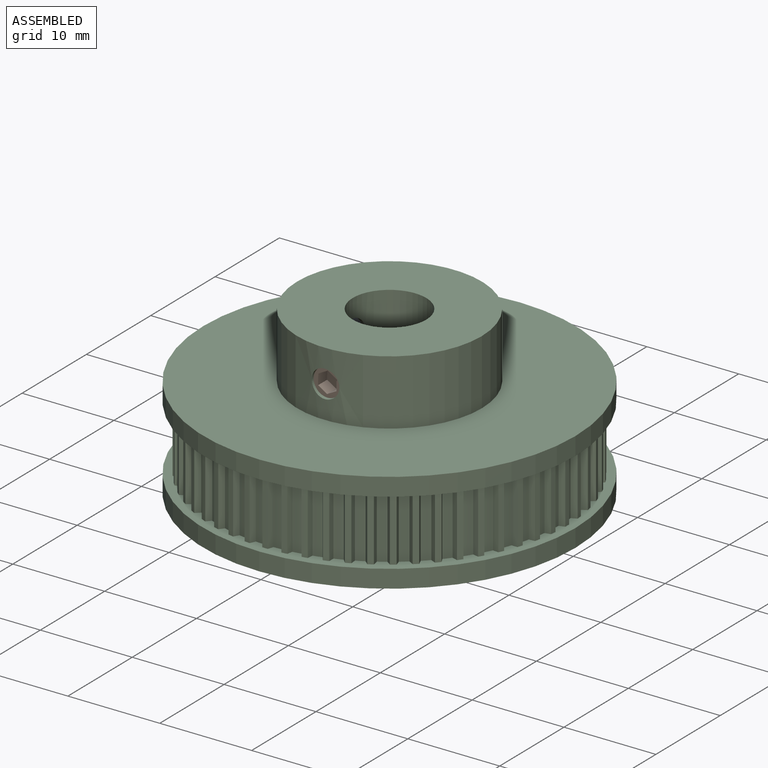
[diagram: assembled view]
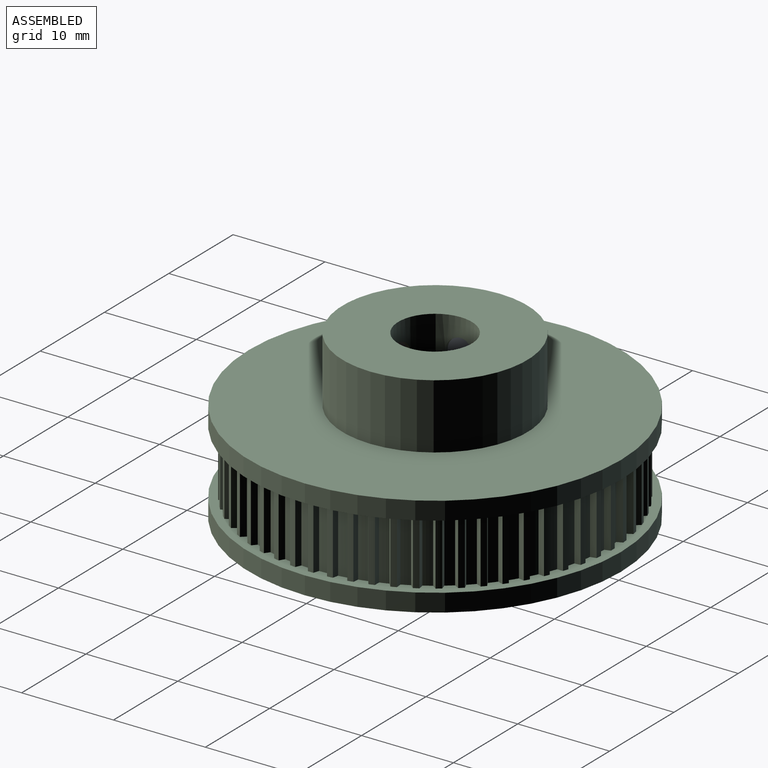
[diagram: assembled view, second angle]
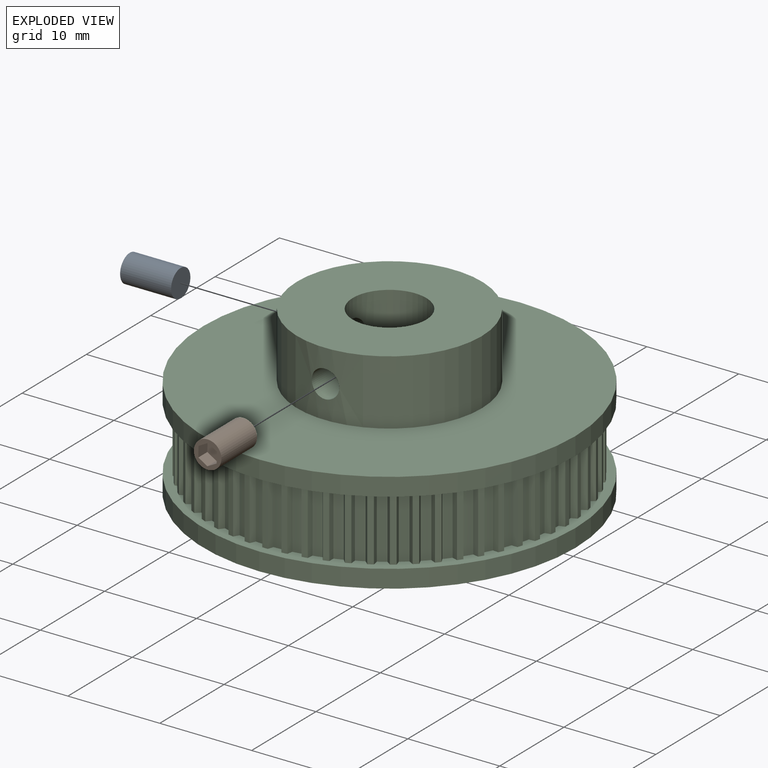
[diagram: exploded view]
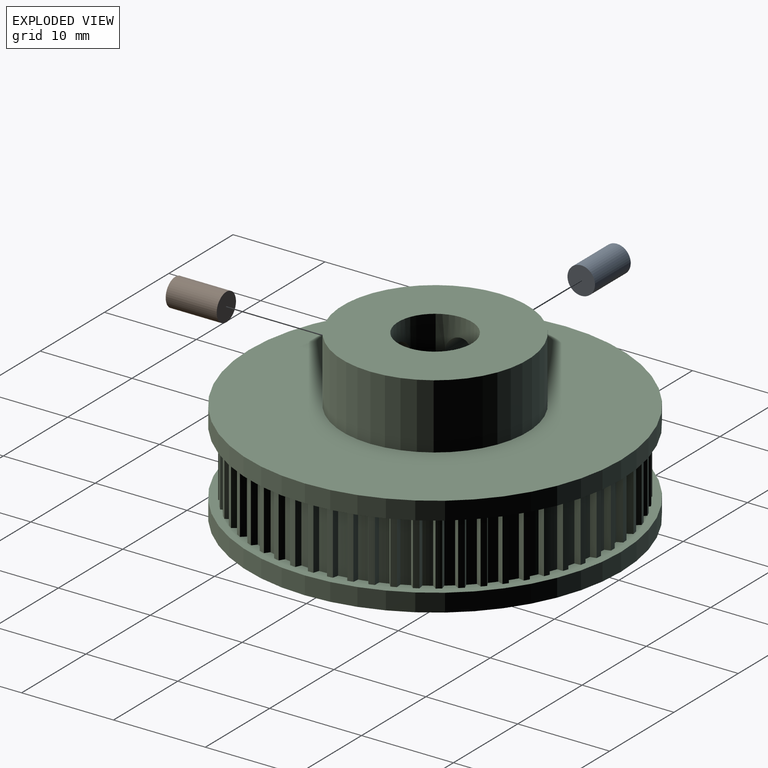
[diagram: exploded view, second angle]
ASSEMBLY  parts=3 mates=2
PART A: 10 faces, bbox 5.6x3x3 mm
  f0: cylinder r=1.5mm len=5.55mm, axis (-1,0,0), area 52.3mm2, adj f1,f2
  f1: plane 3x3mm, normal (1,0,0), area 7.1mm2, adj f0
  f2: plane 3x3mm, normal (-1,0,0), area 3.6mm2, adj f0,f3,f4,f5,f6,f7,f8
  f3: plane 1.4x0.98mm, normal (0,-0.52,0.85), area 1.6mm2, adj f2,f4,f8,f9
  f4: plane 1.4x1.02mm, normal (0,0.48,0.88), area 1.6mm2, adj f2,f3,f5,f9
  f5: plane 1.4x1.15mm, normal (0,1,0.03), area 1.6mm2, adj f2,f4,f6,f9
  f6: plane 1.4x0.98mm, normal (0,0.52,-0.85), area 1.6mm2, adj f2,f5,f7,f9
  f7: plane 1.4x1.02mm, normal (0,-0.48,-0.88), area 1.6mm2, adj f2,f6,f8,f9
  f8: plane 1.4x1.15mm, normal (0,-1,-0.03), area 1.6mm2, adj f2,f3,f7,f9
  f9: plane 2.31x2.03mm, normal (-1,0,0), area 3.5mm2, adj f3,f4,f5,f6,f7,f8
PART B: 10 faces, bbox 3x5.6x3 mm
  f0: cylinder r=1.5mm len=5.55mm, axis (0,1,0), area 52.3mm2, adj f1,f2
  f1: plane 3x3mm, normal (0,-1,0), area 7.1mm2, adj f0
  f2: plane 3x3mm, normal (0,1,0), area 3.6mm2, adj f0,f3,f4,f5,f6,f7,f8
  f3: plane 1.4x0.98mm, normal (-0.52,0,0.85), area 1.6mm2, adj f2,f4,f8,f9
  f4: plane 1.4x1.02mm, normal (0.48,0,0.88), area 1.6mm2, adj f2,f3,f5,f9
  f5: plane 1.4x1.15mm, normal (1,0,0.03), area 1.6mm2, adj f2,f4,f6,f9
  f6: plane 1.4x0.98mm, normal (0.52,0,-0.85), area 1.6mm2, adj f2,f5,f7,f9
  f7: plane 1.4x1.02mm, normal (-0.48,0,-0.88), area 1.6mm2, adj f2,f6,f8,f9
  f8: plane 1.4x1.15mm, normal (-1,0,-0.03), area 1.6mm2, adj f2,f3,f7,f9
  f9: plane 2.31x2.03mm, normal (0,1,0), area 3.5mm2, adj f3,f4,f5,f6,f7,f8
PART C: 251 faces, bbox 40.5x40.5x18.1 mm
  f0: cylinder r=4mm len=18.1mm, axis (0,0,-1), area 440.5mm2, adj f239,f245,f249,f250
  f1: cylinder r=10.05mm len=20.1mm, axis (0,0,-1), area 434.2mm2, adj f244,f245,f249,f250
  f2: cylinder r=18.75mm len=7.1mm, axis (0,0,-1), area 6.8mm2, adj f3,f238,f242,f248
  f3: plane 7.1x0.58mm, normal (0.91,0.41,0), area 4.5mm2, adj f2,f4,f238,f242
  f4: cylinder r=19.35mm len=7.1mm, axis (0,0,-1), area 4.3mm2, adj f3,f5,f238,f242
  f5: plane 7.1x0.62mm, normal (-0.98,0.21,0), area 4.5mm2, adj f4,f6,f238,f242
  f6: cylinder r=18.75mm len=7.1mm, axis (0,0,-1), area 6.8mm2, adj f5,f7,f238,f242
  f7: plane 7.1x0.55mm, normal (0.86,0.5,0), area 4.5mm2, adj f6,f8,f238,f242
  f8: cylinder r=19.35mm len=7.1mm, axis (0,0,-1), area 4.3mm2, adj f7,f9,f238,f242
  f9: plane 7.1x0.63mm, normal (-0.99,0.11,0), area 4.5mm2, adj f8,f10,f238,f242
  f10: cylinder r=18.75mm len=7.1mm, axis (0,0,-1), area 6.8mm2, adj f9,f11,f238,f242
  f11: plane 7.1x0.51mm, normal (0.81,0.59,0), area 4.5mm2, adj f10,f12,f238,f242
  f12: cylinder r=19.35mm len=7.1mm, axis (0,0,-1), area 4.3mm2, adj f11,f13,f238,f242
  f13: plane 7.1x0.64mm, normal (-1,0.01,0), area 4.5mm2, adj f12,f14,f238,f242
  f14: cylinder r=18.75mm len=7.1mm, axis (0,0,-1), area 6.8mm2, adj f13,f15,f238,f242
  f15: plane 7.1x0.47mm, normal (0.74,0.67,0), area 4.5mm2, adj f14,f16,f238,f242
  f16: cylinder r=19.35mm len=7.1mm, axis (0,0,-1), area 4.3mm2, adj f15,f17,f238,f242
  f17: plane 7.1x0.63mm, normal (-1,-0.1,0), area 4.5mm2, adj f16,f18,f238,f242
  f18: cylinder r=18.75mm len=7.1mm, axis (0,0,-1), area 6.8mm2, adj f17,f19,f238,f242
  f19: plane 7.1x0.48mm, normal (0.67,0.75,0), area 4.5mm2, adj f18,f20,f238,f242
  f20: cylinder r=19.35mm len=7.1mm, axis (0,0,-1), area 4.3mm2, adj f19,f21,f238,f242
  f21: plane 7.1x0.62mm, normal (-0.98,-0.2,0), area 4.5mm2, adj f20,f22,f238,f242
  f22: cylinder r=18.75mm len=7.1mm, axis (0,0,-1), area 6.8mm2, adj f21,f23,f238,f242
  f23: plane 7.1x0.52mm, normal (0.58,0.81,0), area 4.5mm2, adj f22,f24,f238,f242
  f24: cylinder r=19.35mm len=7.1mm, axis (0,0,-1), area 4.3mm2, adj f23,f25,f238,f242
  f25: plane 7.1x0.61mm, normal (-0.95,-0.3,0), area 4.5mm2, adj f24,f26,f238,f242
  f26: cylinder r=18.75mm len=7.1mm, axis (0,0,-1), area 6.8mm2, adj f25,f27,f238,f242
  f27: plane 7.1x0.55mm, normal (0.5,0.87,0), area 4.5mm2, adj f26,f28,f238,f242
  f28: cylinder r=19.35mm len=7.1mm, axis (0,0,-1), area 4.3mm2, adj f27,f29,f238,f242
  f29: plane 7.1x0.58mm, normal (-0.92,-0.4,0), area 4.5mm2, adj f28,f30,f238,f242
  f30: cylinder r=18.75mm len=7.1mm, axis (0,0,-1), area 6.8mm2, adj f29,f31,f238,f242
  f31: plane 7.1x0.58mm, normal (0.4,0.92,0), area 4.5mm2, adj f30,f32,f238,f242
  f32: cylinder r=19.35mm len=7.1mm, axis (0,0,-1), area 4.3mm2, adj f31,f33,f238,f242
  f33: plane 7.1x0.55mm, normal (-0.87,-0.5,0), area 4.5mm2, adj f32,f34,f238,f242
  f34: cylinder r=18.75mm len=7.1mm, axis (0,0,-1), area 6.8mm2, adj f33,f35,f238,f242
  f35: plane 7.1x0.61mm, normal (0.3,0.95,0), area 4.5mm2, adj f34,f36,f238,f242
  f36: cylinder r=19.35mm len=7.1mm, axis (0,0,-1), area 4.3mm2, adj f35,f37,f238,f242
  f37: plane 7.1x0.52mm, normal (-0.81,-0.58,0), area 4.5mm2, adj f36,f38,f238,f242
  f38: cylinder r=18.75mm len=7.1mm, axis (0,0,-1), area 6.8mm2, adj f37,f39,f238,f242
  f39: plane 7.1x0.62mm, normal (0.2,0.98,0), area 4.5mm2, adj f38,f40,f238,f242
  f40: cylinder r=19.35mm len=7.1mm, axis (0,0,-1), area 4.3mm2, adj f39,f41,f238,f242
  f41: plane 7.1x0.48mm, normal (-0.75,-0.67,0), area 4.5mm2, adj f40,f42,f238,f242
  f42: cylinder r=18.75mm len=7.1mm, axis (0,0,-1), area 6.8mm2, adj f41,f43,f238,f242
  f43: plane 7.1x0.63mm, normal (0.1,1,0), area 4.5mm2, adj f42,f44,f238,f242
  f44: cylinder r=19.35mm len=7.1mm, axis (0,0,-1), area 4.3mm2, adj f43,f45,f238,f242
  f45: plane 7.1x0.47mm, normal (-0.67,-0.74,0), area 4.5mm2, adj f44,f46,f238,f242
  f46: cylinder r=18.75mm len=7.1mm, axis (0,0,-1), area 6.8mm2, adj f45,f47,f238,f242
  f47: plane 7.1x0.64mm, normal (-0.01,1,0), area 4.5mm2, adj f46,f48,f238,f242
  f48: cylinder r=19.35mm len=7.1mm, axis (0,0,-1), area 4.3mm2, adj f47,f49,f238,f242
  f49: plane 7.1x0.51mm, normal (-0.59,-0.81,0), area 4.5mm2, adj f48,f50,f238,f242
  f50: cylinder r=18.75mm len=7.1mm, axis (0,0,-1), area 6.8mm2, adj f49,f51,f238,f242
  f51: plane 7.1x0.63mm, normal (-0.11,0.99,0), area 4.5mm2, adj f50,f52,f238,f242
  f52: cylinder r=19.35mm len=7.1mm, axis (0,0,-1), area 4.3mm2, adj f51,f53,f238,f242
  f53: plane 7.1x0.55mm, normal (-0.5,-0.86,0), area 4.5mm2, adj f52,f54,f238,f242
  f54: cylinder r=18.75mm len=7.1mm, axis (0,0,-1), area 6.8mm2, adj f53,f55,f238,f242
  f55: plane 7.1x0.62mm, normal (-0.21,0.98,0), area 4.5mm2, adj f54,f56,f238,f242
  f56: cylinder r=19.35mm len=7.1mm, axis (0,0,-1), area 4.3mm2, adj f55,f57,f238,f242
  f57: plane 7.1x0.58mm, normal (-0.41,-0.91,0), area 4.5mm2, adj f56,f58,f238,f242
  f58: cylinder r=18.75mm len=7.1mm, axis (0,0,-1), area 6.8mm2, adj f57,f59,f238,f242
  f59: plane 7.1x0.6mm, normal (-0.31,0.95,0), area 4.5mm2, adj f58,f60,f238,f242
  f60: cylinder r=19.35mm len=7.1mm, axis (0,0,-1), area 4.3mm2, adj f59,f61,f238,f242
  f61: plane 7.1x0.6mm, normal (-0.31,-0.95,0), area 4.5mm2, adj f60,f62,f238,f242
  f62: cylinder r=18.75mm len=7.1mm, axis (0,0,-1), area 6.8mm2, adj f61,f63,f238,f242
  f63: plane 7.1x0.58mm, normal (-0.41,0.91,0), area 4.5mm2, adj f62,f64,f238,f242
  f64: cylinder r=19.35mm len=7.1mm, axis (0,0,-1), area 4.3mm2, adj f63,f65,f238,f242
  f65: plane 7.1x0.62mm, normal (-0.21,-0.98,0), area 4.5mm2, adj f64,f66,f238,f242
  f66: cylinder r=18.75mm len=7.1mm, axis (0,0,-1), area 6.8mm2, adj f65,f67,f238,f242
  f67: plane 7.1x0.55mm, normal (-0.5,0.86,0), area 4.5mm2, adj f66,f68,f238,f242
  f68: cylinder r=19.35mm len=7.1mm, axis (0,0,-1), area 4.3mm2, adj f67,f69,f238,f242
  f69: plane 7.1x0.63mm, normal (-0.11,-0.99,0), area 4.5mm2, adj f68,f70,f238,f242
  f70: cylinder r=18.75mm len=7.1mm, axis (0,0,-1), area 6.8mm2, adj f69,f71,f238,f242
  f71: plane 7.1x0.51mm, normal (-0.59,0.81,0), area 4.5mm2, adj f70,f72,f238,f242
  f72: cylinder r=19.35mm len=7.1mm, axis (0,0,-1), area 4.3mm2, adj f71,f73,f238,f242
  f73: plane 7.1x0.64mm, normal (-0.01,-1,0), area 4.5mm2, adj f72,f74,f238,f242
  f74: cylinder r=18.75mm len=7.1mm, axis (0,0,-1), area 6.8mm2, adj f73,f75,f238,f242
  f75: plane 7.1x0.47mm, normal (-0.67,0.74,0), area 4.5mm2, adj f74,f76,f238,f242
  f76: cylinder r=19.35mm len=7.1mm, axis (0,0,-1), area 4.3mm2, adj f75,f77,f238,f242
  f77: plane 7.1x0.63mm, normal (0.1,-1,0), area 4.5mm2, adj f76,f78,f238,f242
  f78: cylinder r=18.75mm len=7.1mm, axis (0,0,-1), area 6.8mm2, adj f77,f79,f238,f242
  f79: plane 7.1x0.48mm, normal (-0.75,0.67,0), area 4.5mm2, adj f78,f80,f238,f242
  f80: cylinder r=19.35mm len=7.1mm, axis (0,0,-1), area 4.3mm2, adj f79,f81,f238,f242
  f81: plane 7.1x0.62mm, normal (0.2,-0.98,0), area 4.5mm2, adj f80,f82,f238,f242
  f82: cylinder r=18.75mm len=7.1mm, axis (0,0,-1), area 6.8mm2, adj f81,f83,f238,f242
  f83: plane 7.1x0.52mm, normal (-0.81,0.58,0), area 4.5mm2, adj f82,f84,f238,f242
  f84: cylinder r=19.35mm len=7.1mm, axis (0,0,-1), area 4.3mm2, adj f83,f85,f238,f242
  f85: plane 7.1x0.61mm, normal (0.3,-0.95,0), area 4.5mm2, adj f84,f86,f238,f242
  f86: cylinder r=18.75mm len=7.1mm, axis (0,0,-1), area 6.8mm2, adj f85,f87,f238,f242
  f87: plane 7.1x0.55mm, normal (-0.87,0.5,0), area 4.5mm2, adj f86,f88,f238,f242
  f88: cylinder r=19.35mm len=7.1mm, axis (0,0,-1), area 4.3mm2, adj f87,f89,f238,f242
  f89: plane 7.1x0.58mm, normal (0.4,-0.92,0), area 4.5mm2, adj f88,f90,f238,f242
  f90: cylinder r=18.75mm len=7.1mm, axis (0,0,-1), area 6.8mm2, adj f89,f91,f238,f242
  f91: plane 7.1x0.58mm, normal (-0.92,0.4,0), area 4.5mm2, adj f90,f92,f238,f242
  f92: cylinder r=19.35mm len=7.1mm, axis (0,0,-1), area 4.3mm2, adj f91,f93,f238,f242
  f93: plane 7.1x0.55mm, normal (0.5,-0.87,0), area 4.5mm2, adj f92,f94,f238,f242
  f94: cylinder r=18.75mm len=7.1mm, axis (0,0,-1), area 6.8mm2, adj f93,f95,f238,f242
  f95: plane 7.1x0.61mm, normal (-0.95,0.3,0), area 4.5mm2, adj f94,f96,f238,f242
  f96: cylinder r=19.35mm len=7.1mm, axis (0,0,-1), area 4.3mm2, adj f95,f97,f238,f242
  f97: plane 7.1x0.52mm, normal (0.58,-0.81,0), area 4.5mm2, adj f96,f98,f238,f242
  f98: cylinder r=18.75mm len=7.1mm, axis (0,0,-1), area 6.8mm2, adj f97,f99,f238,f242
  f99: plane 7.1x0.62mm, normal (-0.98,0.2,0), area 4.5mm2, adj f98,f100,f238,f242
  f100: cylinder r=19.35mm len=7.1mm, axis (0,0,-1), area 4.3mm2, adj f99,f101,f238,f242
  f101: plane 7.1x0.48mm, normal (0.67,-0.75,0), area 4.5mm2, adj f100,f102,f238,f242
  f102: cylinder r=18.75mm len=7.1mm, axis (0,0,-1), area 6.8mm2, adj f101,f103,f238,f242
  f103: plane 7.1x0.63mm, normal (-1,0.1,0), area 4.5mm2, adj f102,f104,f238,f242
  f104: cylinder r=19.35mm len=7.1mm, axis (0,0,-1), area 4.3mm2, adj f103,f105,f238,f242
  f105: plane 7.1x0.47mm, normal (0.74,-0.67,0), area 4.5mm2, adj f104,f106,f238,f242
  f106: cylinder r=18.75mm len=7.1mm, axis (0,0,-1), area 6.8mm2, adj f105,f107,f238,f242
  f107: plane 7.1x0.64mm, normal (-1,-0.01,0), area 4.5mm2, adj f106,f108,f238,f242
  f108: cylinder r=19.35mm len=7.1mm, axis (0,0,-1), area 4.3mm2, adj f107,f109,f238,f242
  f109: plane 7.1x0.51mm, normal (0.81,-0.59,0), area 4.5mm2, adj f108,f110,f238,f242
  f110: cylinder r=18.75mm len=7.1mm, axis (0,0,-1), area 6.8mm2, adj f109,f111,f238,f242
  f111: plane 7.1x0.63mm, normal (-0.99,-0.11,0), area 4.5mm2, adj f110,f112,f238,f242
  f112: cylinder r=19.35mm len=7.1mm, axis (0,0,-1), area 4.3mm2, adj f111,f113,f238,f242
  f113: plane 7.1x0.55mm, normal (0.86,-0.5,0), area 4.5mm2, adj f112,f114,f238,f242
  f114: cylinder r=18.75mm len=7.1mm, axis (0,0,-1), area 6.8mm2, adj f113,f115,f238,f242
  f115: plane 7.1x0.62mm, normal (-0.98,-0.21,0), area 4.5mm2, adj f114,f116,f238,f242
  f116: cylinder r=19.35mm len=7.1mm, axis (0,0,-1), area 4.3mm2, adj f115,f117,f238,f242
  f117: plane 7.1x0.58mm, normal (0.91,-0.41,0), area 4.5mm2, adj f116,f118,f238,f242
  f118: cylinder r=18.75mm len=7.1mm, axis (0,0,-1), area 6.8mm2, adj f117,f119,f238,f242
  f119: plane 7.1x0.6mm, normal (-0.95,-0.31,0), area 4.5mm2, adj f118,f120,f238,f242
  f120: cylinder r=19.35mm len=7.1mm, axis (0,0,-1), area 4.3mm2, adj f119,f121,f238,f242
  f121: plane 7.1x0.6mm, normal (0.95,-0.31,0), area 4.5mm2, adj f120,f122,f238,f242
  f122: cylinder r=18.75mm len=7.1mm, axis (0,0,-1), area 6.8mm2, adj f121,f123,f238,f242
  f123: plane 7.1x0.58mm, normal (-0.91,-0.41,0), area 4.5mm2, adj f122,f124,f238,f242
  f124: cylinder r=19.35mm len=7.1mm, axis (0,0,-1), area 4.3mm2, adj f123,f125,f238,f242
  f125: plane 7.1x0.62mm, normal (0.98,-0.21,0), area 4.5mm2, adj f124,f126,f238,f242
  f126: cylinder r=18.75mm len=7.1mm, axis (0,0,-1), area 6.8mm2, adj f125,f127,f238,f242
  f127: plane 7.1x0.55mm, normal (-0.86,-0.5,0), area 4.5mm2, adj f126,f128,f238,f242
  f128: cylinder r=19.35mm len=7.1mm, axis (0,0,-1), area 4.3mm2, adj f127,f129,f238,f242
  f129: plane 7.1x0.63mm, normal (0.99,-0.11,0), area 4.5mm2, adj f128,f130,f238,f242
  f130: cylinder r=18.75mm len=7.1mm, axis (0,0,-1), area 6.8mm2, adj f129,f131,f238,f242
  f131: plane 7.1x0.51mm, normal (-0.81,-0.59,0), area 4.5mm2, adj f130,f132,f238,f242
  f132: cylinder r=19.35mm len=7.1mm, axis (0,0,-1), area 4.3mm2, adj f131,f133,f238,f242
  f133: plane 7.1x0.64mm, normal (1,-0.01,0), area 4.5mm2, adj f132,f134,f238,f242
  f134: cylinder r=18.75mm len=7.1mm, axis (0,0,-1), area 6.8mm2, adj f133,f135,f238,f242
  f135: plane 7.1x0.47mm, normal (-0.74,-0.67,0), area 4.5mm2, adj f134,f136,f238,f242
  f136: cylinder r=19.35mm len=7.1mm, axis (0,0,-1), area 4.3mm2, adj f135,f137,f238,f242
  f137: plane 7.1x0.63mm, normal (1,0.1,0), area 4.5mm2, adj f136,f138,f238,f242
  f138: cylinder r=18.75mm len=7.1mm, axis (0,0,-1), area 6.8mm2, adj f137,f139,f238,f242
  f139: plane 7.1x0.48mm, normal (-0.67,-0.75,0), area 4.5mm2, adj f138,f140,f238,f242
  f140: cylinder r=19.35mm len=7.1mm, axis (0,0,-1), area 4.3mm2, adj f139,f141,f238,f242
  f141: plane 7.1x0.62mm, normal (0.98,0.2,0), area 4.5mm2, adj f140,f142,f238,f242
  f142: cylinder r=18.75mm len=7.1mm, axis (0,0,-1), area 6.8mm2, adj f141,f143,f238,f242
  f143: plane 7.1x0.52mm, normal (-0.58,-0.81,0), area 4.5mm2, adj f142,f144,f238,f242
  f144: cylinder r=19.35mm len=7.1mm, axis (0,0,-1), area 4.3mm2, adj f143,f145,f238,f242
  f145: plane 7.1x0.61mm, normal (0.95,0.3,0), area 4.5mm2, adj f144,f146,f238,f242
  f146: cylinder r=18.75mm len=7.1mm, axis (0,0,-1), area 6.8mm2, adj f145,f147,f238,f242
  f147: plane 7.1x0.55mm, normal (-0.5,-0.87,0), area 4.5mm2, adj f146,f148,f238,f242
  f148: cylinder r=19.35mm len=7.1mm, axis (0,0,-1), area 4.3mm2, adj f147,f149,f238,f242
  f149: plane 7.1x0.58mm, normal (0.92,0.4,0), area 4.5mm2, adj f148,f150,f238,f242
  f150: cylinder r=18.75mm len=7.1mm, axis (0,0,-1), area 6.8mm2, adj f149,f151,f238,f242
  f151: plane 7.1x0.58mm, normal (-0.4,-0.92,0), area 4.5mm2, adj f150,f152,f238,f242
  f152: cylinder r=19.35mm len=7.1mm, axis (0,0,-1), area 4.3mm2, adj f151,f153,f238,f242
  f153: plane 7.1x0.55mm, normal (0.87,0.5,0), area 4.5mm2, adj f152,f154,f238,f242
  f154: cylinder r=18.75mm len=7.1mm, axis (0,0,-1), area 6.8mm2, adj f153,f155,f238,f242
  f155: plane 7.1x0.61mm, normal (-0.3,-0.95,0), area 4.5mm2, adj f154,f156,f238,f242
  f156: cylinder r=19.35mm len=7.1mm, axis (0,0,-1), area 4.3mm2, adj f155,f157,f238,f242
  f157: plane 7.1x0.52mm, normal (0.81,0.58,0), area 4.5mm2, adj f156,f158,f238,f242
  f158: cylinder r=18.75mm len=7.1mm, axis (0,0,-1), area 6.8mm2, adj f157,f159,f238,f242
  f159: plane 7.1x0.62mm, normal (-0.2,-0.98,0), area 4.5mm2, adj f158,f160,f238,f242
  f160: cylinder r=19.35mm len=7.1mm, axis (0,0,-1), area 4.3mm2, adj f159,f161,f238,f242
  f161: plane 7.1x0.48mm, normal (0.75,0.67,0), area 4.5mm2, adj f160,f162,f238,f242
  f162: cylinder r=18.75mm len=7.1mm, axis (0,0,-1), area 6.8mm2, adj f161,f163,f238,f242
  f163: plane 7.1x0.63mm, normal (-0.1,-1,0), area 4.5mm2, adj f162,f164,f238,f242
  f164: cylinder r=19.35mm len=7.1mm, axis (0,0,-1), area 4.3mm2, adj f163,f165,f238,f242
  f165: plane 7.1x0.47mm, normal (0.67,0.74,0), area 4.5mm2, adj f164,f166,f238,f242
  f166: cylinder r=18.75mm len=7.1mm, axis (0,0,-1), area 6.8mm2, adj f165,f167,f238,f242
  f167: plane 7.1x0.64mm, normal (0.01,-1,0), area 4.5mm2, adj f166,f168,f238,f242
  f168: cylinder r=19.35mm len=7.1mm, axis (0,0,-1), area 4.3mm2, adj f167,f169,f238,f242
  f169: plane 7.1x0.51mm, normal (0.59,0.81,0), area 4.5mm2, adj f168,f170,f238,f242
  f170: cylinder r=18.75mm len=7.1mm, axis (0,0,-1), area 6.8mm2, adj f169,f171,f238,f242
  f171: plane 7.1x0.63mm, normal (0.11,-0.99,0), area 4.5mm2, adj f170,f172,f238,f242
  f172: cylinder r=19.35mm len=7.1mm, axis (0,0,-1), area 4.3mm2, adj f171,f173,f238,f242
  f173: plane 7.1x0.55mm, normal (0.5,0.86,0), area 4.5mm2, adj f172,f174,f238,f242
  f174: cylinder r=18.75mm len=7.1mm, axis (0,0,-1), area 6.8mm2, adj f173,f175,f238,f242
  f175: plane 7.1x0.62mm, normal (0.21,-0.98,0), area 4.5mm2, adj f174,f176,f238,f242
  f176: cylinder r=19.35mm len=7.1mm, axis (0,0,-1), area 4.3mm2, adj f175,f177,f238,f242
  f177: plane 7.1x0.58mm, normal (0.41,0.91,0), area 4.5mm2, adj f176,f178,f238,f242
  f178: cylinder r=18.75mm len=7.1mm, axis (0,0,-1), area 6.8mm2, adj f177,f179,f238,f242
  f179: plane 7.1x0.6mm, normal (0.31,-0.95,0), area 4.5mm2, adj f178,f180,f238,f242
  f180: cylinder r=19.35mm len=7.1mm, axis (0,0,-1), area 4.3mm2, adj f179,f181,f238,f242
  f181: plane 7.1x0.6mm, normal (0.31,0.95,0), area 4.5mm2, adj f180,f182,f238,f242
  f182: cylinder r=18.75mm len=7.1mm, axis (0,0,-1), area 6.8mm2, adj f181,f183,f238,f242
  f183: plane 7.1x0.58mm, normal (0.41,-0.91,0), area 4.5mm2, adj f182,f184,f238,f242
  f184: cylinder r=19.35mm len=7.1mm, axis (0,0,-1), area 4.3mm2, adj f183,f185,f238,f242
  f185: plane 7.1x0.62mm, normal (0.21,0.98,0), area 4.5mm2, adj f184,f186,f238,f242
  f186: cylinder r=18.75mm len=7.1mm, axis (0,0,-1), area 6.8mm2, adj f185,f187,f238,f242
  f187: plane 7.1x0.55mm, normal (0.5,-0.86,0), area 4.5mm2, adj f186,f188,f238,f242
  f188: cylinder r=19.35mm len=7.1mm, axis (0,0,-1), area 4.3mm2, adj f187,f189,f238,f242
  f189: plane 7.1x0.63mm, normal (0.11,0.99,0), area 4.5mm2, adj f188,f190,f238,f242
  f190: cylinder r=18.75mm len=7.1mm, axis (0,0,-1), area 6.8mm2, adj f189,f191,f238,f242
  f191: plane 7.1x0.51mm, normal (0.59,-0.81,0), area 4.5mm2, adj f190,f192,f238,f242
  f192: cylinder r=19.35mm len=7.1mm, axis (0,0,-1), area 4.3mm2, adj f191,f193,f238,f242
  f193: plane 7.1x0.64mm, normal (0.01,1,0), area 4.5mm2, adj f192,f194,f238,f242
  f194: cylinder r=18.75mm len=7.1mm, axis (0,0,-1), area 6.8mm2, adj f193,f195,f238,f242
  f195: plane 7.1x0.47mm, normal (0.67,-0.74,0), area 4.5mm2, adj f194,f196,f238,f242
  f196: cylinder r=19.35mm len=7.1mm, axis (0,0,-1), area 4.3mm2, adj f195,f197,f238,f242
  f197: plane 7.1x0.63mm, normal (-0.1,1,0), area 4.5mm2, adj f196,f198,f238,f242
  f198: cylinder r=18.75mm len=7.1mm, axis (0,0,-1), area 6.8mm2, adj f197,f199,f238,f242
  f199: plane 7.1x0.48mm, normal (0.75,-0.67,0), area 4.5mm2, adj f198,f200,f238,f242
  f200: cylinder r=19.35mm len=7.1mm, axis (0,0,-1), area 4.3mm2, adj f199,f201,f238,f242
  f201: plane 7.1x0.62mm, normal (-0.2,0.98,0), area 4.5mm2, adj f200,f202,f238,f242
  f202: cylinder r=18.75mm len=7.1mm, axis (0,0,-1), area 6.8mm2, adj f201,f203,f238,f242
  f203: plane 7.1x0.52mm, normal (0.81,-0.58,0), area 4.5mm2, adj f202,f204,f238,f242
  f204: cylinder r=19.35mm len=7.1mm, axis (0,0,-1), area 4.3mm2, adj f203,f205,f238,f242
  f205: plane 7.1x0.61mm, normal (-0.3,0.95,0), area 4.5mm2, adj f204,f206,f238,f242
  f206: cylinder r=18.75mm len=7.1mm, axis (0,0,-1), area 6.8mm2, adj f205,f207,f238,f242
  f207: plane 7.1x0.55mm, normal (0.87,-0.5,0), area 4.5mm2, adj f206,f208,f238,f242
  f208: cylinder r=19.35mm len=7.1mm, axis (0,0,-1), area 4.3mm2, adj f207,f209,f238,f242
  f209: plane 7.1x0.58mm, normal (-0.4,0.92,0), area 4.5mm2, adj f208,f210,f238,f242
  f210: cylinder r=18.75mm len=7.1mm, axis (0,0,-1), area 6.8mm2, adj f209,f211,f238,f242
  f211: plane 7.1x0.58mm, normal (0.92,-0.4,0), area 4.5mm2, adj f210,f212,f238,f242
  f212: cylinder r=19.35mm len=7.1mm, axis (0,0,-1), area 4.3mm2, adj f211,f213,f238,f242
  f213: plane 7.1x0.55mm, normal (-0.5,0.87,0), area 4.5mm2, adj f212,f214,f238,f242
  f214: cylinder r=18.75mm len=7.1mm, axis (0,0,-1), area 6.8mm2, adj f213,f215,f238,f242
  f215: plane 7.1x0.61mm, normal (0.95,-0.3,0), area 4.5mm2, adj f214,f216,f238,f242
  f216: cylinder r=19.35mm len=7.1mm, axis (0,0,-1), area 4.3mm2, adj f215,f217,f238,f242
  f217: plane 7.1x0.52mm, normal (-0.58,0.81,0), area 4.5mm2, adj f216,f218,f238,f242
  f218: cylinder r=18.75mm len=7.1mm, axis (0,0,-1), area 6.8mm2, adj f217,f219,f238,f242
  f219: plane 7.1x0.62mm, normal (0.98,-0.2,0), area 4.5mm2, adj f218,f220,f238,f242
  f220: cylinder r=19.35mm len=7.1mm, axis (0,0,-1), area 4.3mm2, adj f219,f221,f238,f242
  f221: plane 7.1x0.48mm, normal (-0.67,0.75,0), area 4.5mm2, adj f220,f222,f238,f242
  f222: cylinder r=18.75mm len=7.1mm, axis (0,0,-1), area 6.8mm2, adj f221,f223,f238,f242
  f223: plane 7.1x0.63mm, normal (1,-0.1,0), area 4.5mm2, adj f222,f224,f238,f242
  f224: cylinder r=19.35mm len=7.1mm, axis (0,0,-1), area 4.3mm2, adj f223,f225,f238,f242
  f225: plane 7.1x0.47mm, normal (-0.74,0.67,0), area 4.5mm2, adj f224,f226,f238,f242
  f226: cylinder r=18.75mm len=7.1mm, axis (0,0,-1), area 6.8mm2, adj f225,f227,f238,f242
  f227: plane 7.1x0.64mm, normal (1,0.01,0), area 4.5mm2, adj f226,f228,f238,f242
  f228: cylinder r=19.35mm len=7.1mm, axis (0,0,-1), area 4.3mm2, adj f227,f229,f238,f242
  f229: plane 7.1x0.51mm, normal (-0.81,0.59,0), area 4.5mm2, adj f228,f230,f238,f242
  f230: cylinder r=18.75mm len=7.1mm, axis (0,0,-1), area 6.8mm2, adj f229,f231,f238,f242
  f231: plane 7.1x0.63mm, normal (0.99,0.11,0), area 4.5mm2, adj f230,f232,f238,f242
  f232: cylinder r=19.35mm len=7.1mm, axis (0,0,-1), area 4.3mm2, adj f231,f233,f238,f242
  f233: plane 7.1x0.55mm, normal (-0.86,0.5,0), area 4.5mm2, adj f232,f234,f238,f242
  f234: cylinder r=18.75mm len=7.1mm, axis (0,0,-1), area 6.8mm2, adj f233,f235,f238,f242
  f235: plane 7.1x0.62mm, normal (0.98,0.21,0), area 4.5mm2, adj f234,f236,f238,f242
  f236: cylinder r=19.35mm len=7.1mm, axis (0,0,-1), area 4.3mm2, adj f235,f237,f238,f242
  f237: plane 7.1x0.58mm, normal (-0.91,0.41,0), area 4.5mm2, adj f236,f238,f241,f242
  f238: plane 40.5x40.5mm, normal (0,0,1), area 155mm2, adj f2,f3,f4,f5,f6,f7,f8,f9
  f239: plane 40.5x40.5mm, normal (0,0,-1), area 1238mm2, adj f0,f240
  f240: cylinder r=20.25mm len=40.5mm, axis (0,0,-1), area 248.1mm2, adj f238,f239
  f241: cylinder r=18.75mm len=7.1mm, axis (0,0,-1), area 6.8mm2, adj f237,f238,f242,f246
  f242: plane 40.5x40.5mm, normal (0,0,-1), area 155mm2, adj f2,f3,f4,f5,f6,f7,f8,f9
  f243: cylinder r=20.25mm len=40.5mm, axis (0,0,-1), area 248.1mm2, adj f242,f244
  f244: plane 40.5x40.5mm, normal (0,0,1), area 970.9mm2, adj f1,f243
  f245: plane 20.1x20.1mm, normal (0,0,1), area 267mm2, adj f0,f1
  f246: plane 7.1x0.6mm, normal (0.95,0.31,0), area 4.5mm2, adj f238,f241,f242,f247
  f247: cylinder r=19.35mm len=7.1mm, axis (0,0,-1), area 4.3mm2, adj f238,f242,f246,f248
  f248: plane 7.1x0.6mm, normal (-0.95,0.31,0), area 4.5mm2, adj f2,f238,f242,f247
  f249: cylinder r=1.5mm len=6.34mm, axis (0,1,0), area 57.9mm2, adj f0,f1
  f250: cylinder r=1.5mm len=6.34mm, axis (1,0,0), area 57.9mm2, adj f0,f1
PLACE A t=(-1.15,0,2.05)mm
PLACE B rot(axis=(1,0,0),180deg) t=(0,-1.15,27.05)mm
PLACE C at identity
MATE fastened B.f0 <-> C.f249  axis (0,-1,0) through (0,-6.88,14.55)mm
MATE fastened A.f0 <-> C.f250  axis (-1,0,0) through (-6.88,0,14.55)mm
